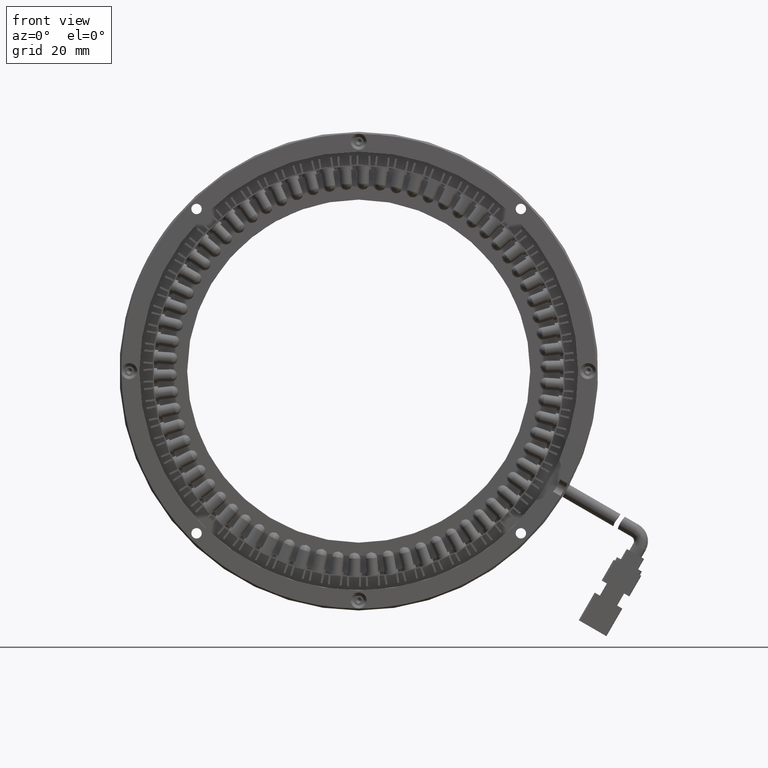
[diagram: clean part render]
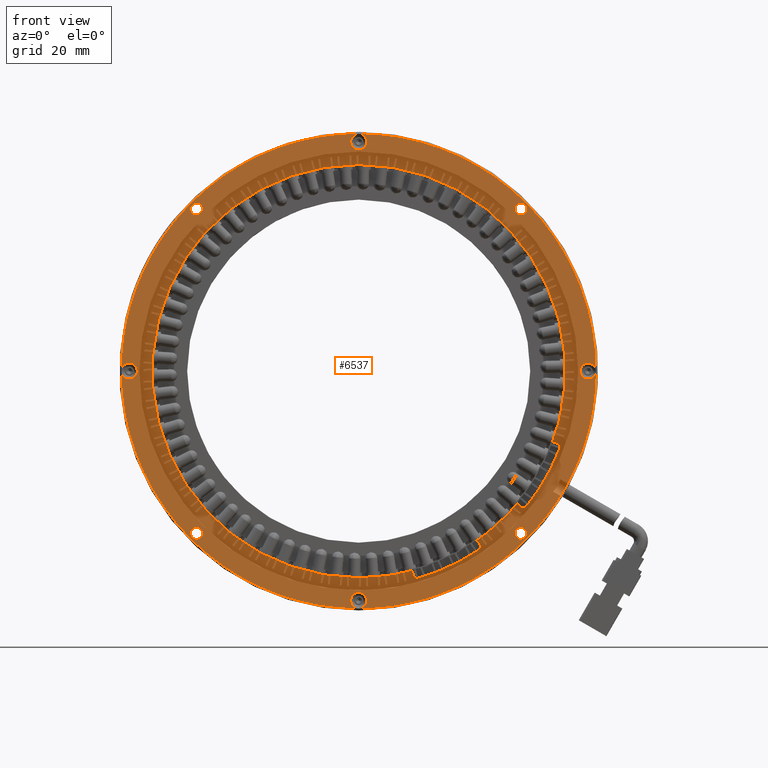
[diagram: same view with one face highlighted and labeled with its STEP entity id]
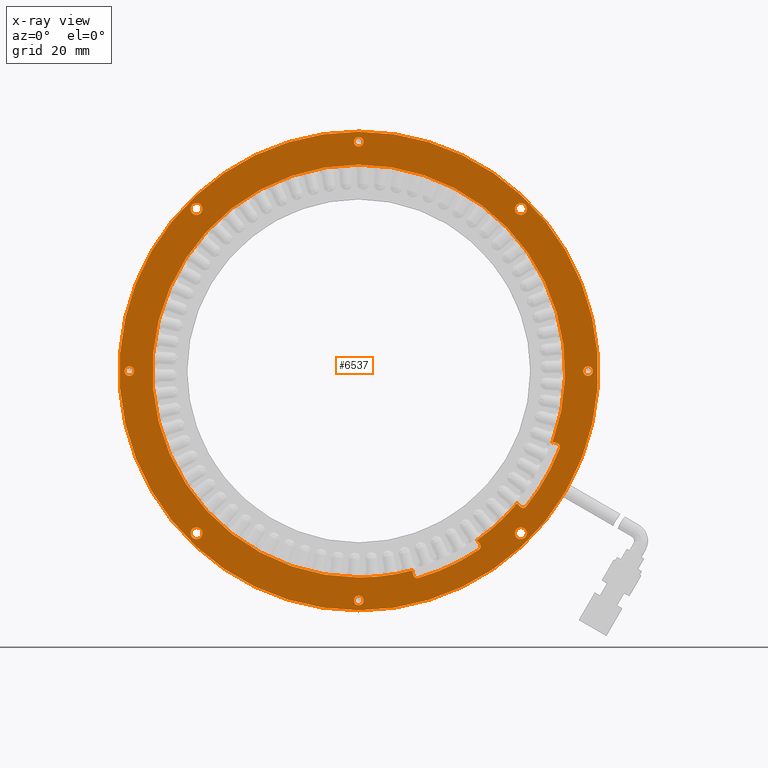
[diagram: x-ray of the same camera — body ghosted, the highlighted face saturated]
A machine part, front view. The second image highlights one B-rep face of the part: STEP entity #6537.
The next image is the same camera in x-ray: the body ghosted, the highlighted face saturated — about 0% of this face is hidden behind the body in this view.
In plain terms, the highlighted planar face has unit normal (0, 1, 0).
Its self-contained STEP definition (entity closure, byte-faithful):
#82 = CIRCLE ( 'NONE', #44407, 1.199999999999598500 ) ;
#341 = DIRECTION ( 'NONE',  ( -0.9396926207839257900, 0.0000000000000000000, 0.3420201433311156900 ) ) ;
#636 = ORIENTED_EDGE ( 'NONE', *, *, #7495, .F. ) ;
#1054 = DIRECTION ( 'NONE',  ( 0.0000000000000000000, 0.0000000000000000000, 1.000000000000000000 ) ) ;
#1114 = AXIS2_PLACEMENT_3D ( 'NONE', #3243, #37939, #8280 ) ;
#1188 = CARTESIAN_POINT ( 'NONE',  ( 70.01589320061864900, 21.01889671362000200, -50.60529560871999200 ) ) ;
#1211 = CIRCLE ( 'NONE', #24453, 1.500000000000001300 ) ;
#1305 = DIRECTION ( 'NONE',  ( 0.0000000000000000000, 0.0000000000000000000, 1.000000000000000000 ) ) ;
#1421 = DIRECTION ( 'NONE',  ( 0.0000000000000000000, 0.0000000000000000000, 1.000000000000000000 ) ) ;
#1616 = DIRECTION ( 'NONE',  ( 0.0000000000000000000, -1.000000000000000000, -0.0000000000000000000 ) ) ;
#1843 = CARTESIAN_POINT ( 'NONE',  ( 56.45624510954999700, 21.01889671361719500, 60.00000000000000000 ) ) ;
#1940 = EDGE_CURVE ( 'NONE', #21557, #63430, #14901, .T. ) ;
#1958 = AXIS2_PLACEMENT_3D ( 'NONE', #17496, #52137, #22484 ) ;
#1964 = VECTOR ( 'NONE', #341, 1000.000000000000100 ) ;
#2201 = DIRECTION ( 'NONE',  ( -8.326672684688724500E-014, 0.0000000000000000000, 1.000000000000000000 ) ) ;
#2352 = DIRECTION ( 'NONE',  ( 0.0000000000000000000, -1.000000000000000000, -0.0000000000000000000 ) ) ;
#2421 = DIRECTION ( 'NONE',  ( 0.0000000000000000000, -1.000000000000000000, 0.0000000000000000000 ) ) ;
#2759 = VECTOR ( 'NONE', #35909, 1000.000000000000200 ) ;
#3002 = VERTEX_POINT ( 'NONE', #17471 ) ;
#3004 = ORIENTED_EDGE ( 'NONE', *, *, #22368, .T. ) ;
#3036 = DIRECTION ( 'NONE',  ( 0.0000000000000000000, -1.000000000000000000, 0.0000000000000000000 ) ) ;
#3073 = CARTESIAN_POINT ( 'NONE',  ( 70.07451705029224300, 21.01889671361679700, -49.92599692893465100 ) ) ;
#3095 = CIRCLE ( 'NONE', #59226, 51.75000000000000700 ) ;
#3243 = CARTESIAN_POINT ( 'NONE',  ( 56.45624510954999000, 21.01889671361647400, 0.0000000000000000000 ) ) ;
#3374 = CIRCLE ( 'NONE', #10572, 1.500000000000015100 ) ;
#3519 = DIRECTION ( 'NONE',  ( -0.0000000000000000000, 1.000000000000000000, -0.0000000000000000000 ) ) ;
#3535 = DIRECTION ( 'NONE',  ( 1.387778780781454000E-014, 0.0000000000000000000, 1.000000000000000000 ) ) ;
#3543 = DIRECTION ( 'NONE',  ( 0.0000000000000000000, 0.0000000000000000000, 1.000000000000000000 ) ) ;
#3587 = PLANE ( 'NONE',  #36748 ) ;
#3991 = ORIENTED_EDGE ( 'NONE', *, *, #46215, .F. ) ;
#4179 = CARTESIAN_POINT ( 'NONE',  ( 56.45624510954999000, 21.01889671361712400, -57.50000000000000000 ) ) ;
#4808 = VERTEX_POINT ( 'NONE', #33383 ) ;
#5374 = CARTESIAN_POINT ( 'NONE',  ( 97.11488502777000100, 21.01889671361723400, -39.15863991822999400 ) ) ;
#5725 = VERTEX_POINT ( 'NONE', #55593 ) ;
#5742 = CIRCLE ( 'NONE', #61881, 1.200000000000000000 ) ;
#5793 = VERTEX_POINT ( 'NONE', #31374 ) ;
#5990 = EDGE_CURVE ( 'NONE', #10380, #26858, #3374, .T. ) ;
#5997 = AXIS2_PLACEMENT_3D ( 'NONE', #14499, #49116, #19501 ) ;
#6029 = ORIENTED_EDGE ( 'NONE', *, *, #8526, .T. ) ;
#6140 = VERTEX_POINT ( 'NONE', #24599 ) ;
#6537 = ADVANCED_FACE ( 'NONE', ( #8700, #49805, #59790, #46670, #33511, #35077, #20380, #7166, #58221, #45129 ), #3587, .T. ) ;
#6619 = CARTESIAN_POINT ( 'NONE',  ( 113.9562451095000000, 21.01889671361712400, 0.0000000000000000000 ) ) ;
#6800 = VERTEX_POINT ( 'NONE', #44310 ) ;
#7131 = EDGE_LOOP ( 'NONE', ( #35744, #40480 ) ) ;
#7135 = EDGE_CURVE ( 'NONE', #61169, #16657, #9940, .T. ) ;
#7166 = FACE_BOUND ( 'NONE', #36577, .T. ) ;
#7495 = EDGE_CURVE ( 'NONE', #21557, #29632, #8254, .T. ) ;
#7617 = DIRECTION ( 'NONE',  ( -0.0000000000000000000, -1.000000000000000000, -0.0000000000000000000 ) ) ;
#8254 = CIRCLE ( 'NONE', #39347, 1.000000000000000900 ) ;
#8280 = DIRECTION ( 'NONE',  ( 0.0000000000000000000, 0.0000000000000000000, 1.000000000000000000 ) ) ;
#8393 = CIRCLE ( 'NONE', #43202, 0.9999999999999940000 ) ;
#8526 = EDGE_CURVE ( 'NONE', #35371, #15156, #32268, .T. ) ;
#8573 = ORIENTED_EDGE ( 'NONE', *, *, #52448, .F. ) ;
#8700 = FACE_BOUND ( 'NONE', #34297, .T. ) ;
#9196 = DIRECTION ( 'NONE',  ( 0.0000000000000000000, 0.0000000000000000000, -1.000000000000000000 ) ) ;
#9940 = CIRCLE ( 'NONE', #36394, 1.500000000000015100 ) ;
#9973 = DIRECTION ( 'NONE',  ( -0.0000000000000000000, 1.000000000000000000, 0.0000000000000000000 ) ) ;
#10152 = DIRECTION ( 'NONE',  ( 0.0000000000000000000, -1.000000000000000000, -0.0000000000000000000 ) ) ;
#10380 = VERTEX_POINT ( 'NONE', #48098 ) ;
#10442 = ORIENTED_EDGE ( 'NONE', *, *, #57289, .F. ) ;
#10572 = AXIS2_PLACEMENT_3D ( 'NONE', #18996, #53580, #23978 ) ;
#10586 = ORIENTED_EDGE ( 'NONE', *, *, #49747, .T. ) ;
#10761 = CARTESIAN_POINT ( 'NONE',  ( 97.69216072687002800, 21.01889671361712400, -33.29563429641999800 ) ) ;
#10939 = ORIENTED_EDGE ( 'NONE', *, *, #43734, .T. ) ;
#11130 = EDGE_CURVE ( 'NONE', #63430, #5725, #26734, .T. ) ;
#11220 = ORIENTED_EDGE ( 'NONE', *, *, #29801, .F. ) ;
#11308 = EDGE_CURVE ( 'NONE', #3002, #54089, #5742, .T. ) ;
#11350 = CIRCLE ( 'NONE', #38288, 1.000000000000000900 ) ;
#11456 = CARTESIAN_POINT ( 'NONE',  ( 70.98181902692999800, 21.01889671361712400, -50.34647656362000100 ) ) ;
#11618 = DIRECTION ( 'NONE',  ( 0.0000000000000000000, 0.0000000000000000000, -1.000000000000000000 ) ) ;
#11765 = VECTOR ( 'NONE', #52936, 1000.000000000000100 ) ;
#12000 = AXIS2_PLACEMENT_3D ( 'NONE', #61537, #31936, #2201 ) ;
#12568 = AXIS2_PLACEMENT_3D ( 'NONE', #20113, #54697, #25096 ) ;
#13107 = EDGE_CURVE ( 'NONE', #6800, #44376, #52950, .T. ) ;
#13172 = CARTESIAN_POINT ( 'NONE',  ( 105.3451509462000100, 21.01889671361712400, -17.85828428287000200 ) ) ;
#14046 = EDGE_CURVE ( 'NONE', #15156, #29632, #3095, .T. ) ;
#14105 = CIRCLE ( 'NONE', #31451, 1.500000000000015100 ) ;
#14291 = DIRECTION ( 'NONE',  ( -0.0000000000000000000, 1.000000000000000000, 0.0000000000000000000 ) ) ;
#14472 = CARTESIAN_POINT ( 'NONE',  ( 86.50617681832380900, 21.01889671361712400, -42.91575007264151500 ) ) ;
#14499 = CARTESIAN_POINT ( 'NONE',  ( 15.79760519132000100, 21.01889671361723400, 40.65863991823000800 ) ) ;
#14707 = ORIENTED_EDGE ( 'NONE', *, *, #1940, .T. ) ;
#14815 = CARTESIAN_POINT ( 'NONE',  ( 56.45624510954999000, 21.01889671361712400, 57.50000000000000000 ) ) ;
#14901 = LINE ( 'NONE', #42472, #28004 ) ;
#14919 = CARTESIAN_POINT ( 'NONE',  ( 56.45624510954999000, 21.01889671361719500, 0.0000000000000000000 ) ) ;
#15156 = VERTEX_POINT ( 'NONE', #62416 ) ;
#15194 = EDGE_CURVE ( 'NONE', #52588, #58176, #43570, .T. ) ;
#15228 = LINE ( 'NONE', #59692, #1964 ) ;
#15233 = EDGE_CURVE ( 'NONE', #18315, #5793, #50570, .T. ) ;
#15350 = ORIENTED_EDGE ( 'NONE', *, *, #63004, .T. ) ;
#15600 = VERTEX_POINT ( 'NONE', #22605 ) ;
#15660 = CARTESIAN_POINT ( 'NONE',  ( 97.11488502777000100, 21.01889671361723400, 42.15863991823000800 ) ) ;
#15795 = DIRECTION ( 'NONE',  ( -1.387778780781444400E-014, 0.0000000000000000000, 1.000000000000000000 ) ) ;
#15894 = VERTEX_POINT ( 'NONE', #25609 ) ;
#16316 = AXIS2_PLACEMENT_3D ( 'NONE', #47558, #17937, #52573 ) ;
#16479 = DIRECTION ( 'NONE',  ( 0.0000000000000000000, 0.0000000000000000000, 1.000000000000000000 ) ) ;
#16535 = ORIENTED_EDGE ( 'NONE', *, *, #62038, .T. ) ;
#16657 = VERTEX_POINT ( 'NONE', #51693 ) ;
#17293 = CIRCLE ( 'NONE', #45440, 60.00000000000000000 ) ;
#17471 = CARTESIAN_POINT ( 'NONE',  ( 113.9562451095000000, 21.01889671361712400, 1.200000000000000000 ) ) ;
#17496 = CARTESIAN_POINT ( 'NONE',  ( 56.45624510954999000, 21.01889671361647400, 0.0000000000000000000 ) ) ;
#17937 = DIRECTION ( 'NONE',  ( 0.0000000000000000000, 1.000000000000000000, 0.0000000000000000000 ) ) ;
#17962 = VERTEX_POINT ( 'NONE', #47146 ) ;
#18058 = CIRCLE ( 'NONE', #48281, 1.200000000000013500 ) ;
#18315 = VERTEX_POINT ( 'NONE', #55749 ) ;
#18340 = CARTESIAN_POINT ( 'NONE',  ( 86.85038465600565900, 21.01889671362000200, -43.40732980994000200 ) ) ;
#18540 = AXIS2_PLACEMENT_3D ( 'NONE', #4179, #38897, #9196 ) ;
#18752 = VERTEX_POINT ( 'NONE', #20436 ) ;
#18996 = CARTESIAN_POINT ( 'NONE',  ( 97.11488502777000100, 21.01889671361723400, -40.65863991823000800 ) ) ;
#19022 = AXIS2_PLACEMENT_3D ( 'NONE', #62847, #33264, #3535 ) ;
#19501 = DIRECTION ( 'NONE',  ( 0.0000000000000000000, 0.0000000000000000000, 1.000000000000000000 ) ) ;
#19571 = CIRCLE ( 'NONE', #23363, 1.200000000000013500 ) ;
#19778 = DIRECTION ( 'NONE',  ( 0.0000000000000000000, 0.0000000000000000000, -1.000000000000000000 ) ) ;
#19895 = DIRECTION ( 'NONE',  ( 0.0000000000000000000, 0.0000000000000000000, -1.000000000000000000 ) ) ;
#20069 = CARTESIAN_POINT ( 'NONE',  ( 15.79760519132000100, 21.01889671361723400, 39.15863991823000800 ) ) ;
#20113 = CARTESIAN_POINT ( 'NONE',  ( 86.03123261172997600, 21.01889671361712400, -43.98090624628999700 ) ) ;
#20380 = FACE_BOUND ( 'NONE', #52091, .T. ) ;
#20436 = CARTESIAN_POINT ( 'NONE',  ( 71.41413640679510900, 21.01889671361712400, -51.88700692793715800 ) ) ;
#21557 = VERTEX_POINT ( 'NONE', #60088 ) ;
#21588 = DIRECTION ( 'NONE',  ( 0.0000000000000000000, -1.000000000000000000, 0.0000000000000000000 ) ) ;
#21635 = EDGE_CURVE ( 'NONE', #4808, #18752, #30322, .T. ) ;
#21975 = ORIENTED_EDGE ( 'NONE', *, *, #21635, .T. ) ;
#22225 = DIRECTION ( 'NONE',  ( -0.0000000000000000000, 1.000000000000000000, -0.0000000000000000000 ) ) ;
#22368 = EDGE_CURVE ( 'NONE', #54089, #3002, #61816, .T. ) ;
#22484 = DIRECTION ( 'NONE',  ( -9.385943444898664700E-016, 0.0000000000000000000, 1.000000000000000000 ) ) ;
#22605 = CARTESIAN_POINT ( 'NONE',  ( 105.6871710895282900, 21.01889671361996300, -17.91859166208542600 ) ) ;
#23363 = AXIS2_PLACEMENT_3D ( 'NONE', #51879, #22225, #56780 ) ;
#23417 = VERTEX_POINT ( 'NONE', #27587 ) ;
#23491 = DIRECTION ( 'NONE',  ( 0.7660444431237696300, 0.0000000000000000000, -0.6427876096808288200 ) ) ;
#23570 = CARTESIAN_POINT ( 'NONE',  ( -5.986352945838000900, 21.01889671362000200, -62.40000000000000600 ) ) ;
#23639 = CIRCLE ( 'NONE', #16316, 1.500000000000015100 ) ;
#23728 = CARTESIAN_POINT ( 'NONE',  ( 56.45624510954999000, 21.01889671361647400, 0.0000000000000000000 ) ) ;
#23763 = AXIS2_PLACEMENT_3D ( 'NONE', #32140, #2421, #37134 ) ;
#23978 = DIRECTION ( 'NONE',  ( 0.0000000000000000000, 0.0000000000000000000, 1.000000000000000000 ) ) ;
#24148 = VERTEX_POINT ( 'NONE', #15660 ) ;
#24453 = AXIS2_PLACEMENT_3D ( 'NONE', #60747, #31140, #1421 ) ;
#24599 = CARTESIAN_POINT ( 'NONE',  ( 15.79760519132000100, 21.01889671361723400, 42.15863991823000800 ) ) ;
#24664 = EDGE_CURVE ( 'NONE', #58176, #52588, #17293, .T. ) ;
#24979 = CARTESIAN_POINT ( 'NONE',  ( -1.043754890453999700, 21.01889671361712400, -4.014800644713822900E-013 ) ) ;
#25061 = EDGE_CURVE ( 'NONE', #16657, #61169, #14105, .T. ) ;
#25096 = DIRECTION ( 'NONE',  ( -1.387778780781463700E-014, 0.0000000000000000000, 1.000000000000000000 ) ) ;
#25134 = CARTESIAN_POINT ( 'NONE',  ( 70.01589320062980400, 21.01889671361712400, -50.60529560872557700 ) ) ;
#25609 = CARTESIAN_POINT ( 'NONE',  ( 105.0053479411685400, 21.01889671361679700, -17.91778764928664500 ) ) ;
#25630 = CARTESIAN_POINT ( 'NONE',  ( 56.45624510954999000, 21.01889671361719500, -60.00000000000000000 ) ) ;
#26169 = ORIENTED_EDGE ( 'NONE', *, *, #41073, .T. ) ;
#26734 = CIRCLE ( 'NONE', #38755, 1.000000000000000900 ) ;
#26858 = VERTEX_POINT ( 'NONE', #5374 ) ;
#26983 = CIRCLE ( 'NONE', #31587, 53.99999999999999300 ) ;
#27056 = CIRCLE ( 'NONE', #49778, 51.75000000000000700 ) ;
#27113 = EDGE_CURVE ( 'NONE', #26858, #10380, #23639, .T. ) ;
#27587 = CARTESIAN_POINT ( 'NONE',  ( 56.45624510954999000, 21.01889671361647400, 51.75000000000000700 ) ) ;
#27597 = DIRECTION ( 'NONE',  ( -0.0000000000000000000, 1.000000000000000000, 0.0000000000000000000 ) ) ;
#27817 = DIRECTION ( 'NONE',  ( -0.0000000000000000000, -1.000000000000000000, -0.0000000000000000000 ) ) ;
#27865 = EDGE_CURVE ( 'NONE', #46682, #40109, #19571, .T. ) ;
#27929 = VERTEX_POINT ( 'NONE', #3073 ) ;
#28004 = VECTOR ( 'NONE', #23491, 1000.000000000000200 ) ;
#28063 = AXIS2_PLACEMENT_3D ( 'NONE', #24979, #59535, #29917 ) ;
#28500 = DIRECTION ( 'NONE',  ( 0.0000000000000000000, 0.0000000000000000000, 1.000000000000000000 ) ) ;
#28671 = DIRECTION ( 'NONE',  ( 0.0000000000000000000, 0.0000000000000000000, 1.000000000000000000 ) ) ;
#28928 = AXIS2_PLACEMENT_3D ( 'NONE', #62858, #33269, #3543 ) ;
#29004 = VERTEX_POINT ( 'NONE', #49708 ) ;
#29456 = VERTEX_POINT ( 'NONE', #42511 ) ;
#29632 = VERTEX_POINT ( 'NONE', #52410 ) ;
#29801 = EDGE_CURVE ( 'NONE', #38768, #6140, #59855, .T. ) ;
#29854 = CARTESIAN_POINT ( 'NONE',  ( 86.58925124384661800, 21.01889671361712400, -44.81073466603146500 ) ) ;
#29917 = DIRECTION ( 'NONE',  ( 0.0000000000000000000, 0.0000000000000000000, -1.000000000000000000 ) ) ;
#30322 = CIRCLE ( 'NONE', #40261, 0.9999999999999940000 ) ;
#30575 = ORIENTED_EDGE ( 'NONE', *, *, #7135, .F. ) ;
#30786 = DIRECTION ( 'NONE',  ( 0.0000000000000000000, -1.000000000000000000, -0.0000000000000000000 ) ) ;
#31039 = DIRECTION ( 'NONE',  ( -0.0000000000000000000, 1.000000000000000000, 0.0000000000000000000 ) ) ;
#31140 = DIRECTION ( 'NONE',  ( 0.0000000000000000000, 1.000000000000000000, 0.0000000000000000000 ) ) ;
#31356 = CARTESIAN_POINT ( 'NONE',  ( 71.13713841981999100, 21.01889671361712400, -50.92613642926999500 ) ) ;
#31374 = CARTESIAN_POINT ( 'NONE',  ( 56.45624510954999000, 21.01889671361712400, -58.70000000000000300 ) ) ;
#31451 = AXIS2_PLACEMENT_3D ( 'NONE', #43940, #14291, #48914 ) ;
#31587 = AXIS2_PLACEMENT_3D ( 'NONE', #37292, #7617, #42266 ) ;
#31887 = CARTESIAN_POINT ( 'NONE',  ( 86.85038465601374500, 21.01889671361712400, -43.40732980994152300 ) ) ;
#31936 = DIRECTION ( 'NONE',  ( 0.0000000000000000000, -1.000000000000000000, -0.0000000000000000000 ) ) ;
#32000 = EDGE_CURVE ( 'NONE', #15894, #23417, #54564, .T. ) ;
#32032 = CIRCLE ( 'NONE', #28928, 1.500000000000001300 ) ;
#32073 = CARTESIAN_POINT ( 'NONE',  ( 105.3451509462000100, 21.01889671361712400, -18.85828428286999900 ) ) ;
#32140 = CARTESIAN_POINT ( 'NONE',  ( 56.45624510954999000, 21.01889671361712400, -57.50000000000000000 ) ) ;
#32268 = CIRCLE ( 'NONE', #19022, 0.9999999999999940000 ) ;
#32581 = ORIENTED_EDGE ( 'NONE', *, *, #49237, .T. ) ;
#32613 = EDGE_CURVE ( 'NONE', #44376, #6800, #82, .T. ) ;
#32746 = CARTESIAN_POINT ( 'NONE',  ( 113.9562451095000000, 21.01889671361712400, 0.0000000000000000000 ) ) ;
#33169 = AXIS2_PLACEMENT_3D ( 'NONE', #57394, #27817, #62407 ) ;
#33244 = CARTESIAN_POINT ( 'NONE',  ( 56.45624510954999000, 21.01889671361719500, 0.0000000000000000000 ) ) ;
#33264 = DIRECTION ( 'NONE',  ( 0.0000000000000000000, -1.000000000000000000, -0.0000000000000000000 ) ) ;
#33269 = DIRECTION ( 'NONE',  ( 0.0000000000000000000, 1.000000000000000000, 0.0000000000000000000 ) ) ;
#33383 = CARTESIAN_POINT ( 'NONE',  ( 70.17121259352165900, 21.01889671361712400, -51.18495547437836300 ) ) ;
#33511 = FACE_BOUND ( 'NONE', #55278, .T. ) ;
#34297 = EDGE_LOOP ( 'NONE', ( #3004, #58011 ) ) ;
#34357 = ORIENTED_EDGE ( 'NONE', *, *, #27113, .F. ) ;
#34934 = ORIENTED_EDGE ( 'NONE', *, *, #62749, .T. ) ;
#35077 = FACE_BOUND ( 'NONE', #61714, .T. ) ;
#35371 = VERTEX_POINT ( 'NONE', #14472 ) ;
#35744 = ORIENTED_EDGE ( 'NONE', *, *, #32613, .T. ) ;
#35771 = EDGE_LOOP ( 'NONE', ( #37462, #39845 ) ) ;
#35909 = DIRECTION ( 'NONE',  ( 0.2588190451092419200, 0.0000000000000000000, -0.9659258262872673100 ) ) ;
#36195 = EDGE_CURVE ( 'NONE', #29456, #27929, #44829, .T. ) ;
#36299 = AXIS2_PLACEMENT_3D ( 'NONE', #39838, #10152, #44785 ) ;
#36337 = DIRECTION ( 'NONE',  ( 1.387778780781454000E-014, 0.0000000000000000000, 1.000000000000000000 ) ) ;
#36394 = AXIS2_PLACEMENT_3D ( 'NONE', #57207, #27597, #62182 ) ;
#36577 = EDGE_LOOP ( 'NONE', ( #54594, #56926 ) ) ;
#36748 = AXIS2_PLACEMENT_3D ( 'NONE', #23570, #58114, #28500 ) ;
#37062 = DIRECTION ( 'NONE',  ( 0.0000000000000000000, 0.0000000000000000000, 1.000000000000000000 ) ) ;
#37134 = DIRECTION ( 'NONE',  ( 0.0000000000000000000, 0.0000000000000000000, -1.000000000000000000 ) ) ;
#37292 = CARTESIAN_POINT ( 'NONE',  ( 56.45624510954999000, 21.01889671361712400, 0.0000000000000000000 ) ) ;
#37462 = ORIENTED_EDGE ( 'NONE', *, *, #15194, .T. ) ;
#37723 = DIRECTION ( 'NONE',  ( 0.0000000000000000000, 0.0000000000000000000, -1.000000000000000000 ) ) ;
#37939 = DIRECTION ( 'NONE',  ( 0.0000000000000000000, -1.000000000000000000, -0.0000000000000000000 ) ) ;
#37956 = ORIENTED_EDGE ( 'NONE', *, *, #60349, .T. ) ;
#38238 = DIRECTION ( 'NONE',  ( 0.0000000000000000000, 0.0000000000000000000, -1.000000000000000000 ) ) ;
#38288 = AXIS2_PLACEMENT_3D ( 'NONE', #11456, #46101, #16479 ) ;
#38755 = AXIS2_PLACEMENT_3D ( 'NONE', #10761, #45395, #15795 ) ;
#38768 = VERTEX_POINT ( 'NONE', #20069 ) ;
#38897 = DIRECTION ( 'NONE',  ( 0.0000000000000000000, -1.000000000000000000, 0.0000000000000000000 ) ) ;
#39347 = AXIS2_PLACEMENT_3D ( 'NONE', #60642, #31039, #1305 ) ;
#39665 = CARTESIAN_POINT ( 'NONE',  ( 15.79760519132000100, 21.01889671361723400, 40.65863991823000800 ) ) ;
#39678 = ORIENTED_EDGE ( 'NONE', *, *, #36195, .T. ) ;
#39838 = CARTESIAN_POINT ( 'NONE',  ( 105.9090680539999700, 21.01889671361712400, -19.06353332470000000 ) ) ;
#39845 = ORIENTED_EDGE ( 'NONE', *, *, #24664, .T. ) ;
#40109 = VERTEX_POINT ( 'NONE', #51852 ) ;
#40261 = AXIS2_PLACEMENT_3D ( 'NONE', #31356, #1616, #36337 ) ;
#40480 = ORIENTED_EDGE ( 'NONE', *, *, #13107, .T. ) ;
#40829 = LINE ( 'NONE', #1188, #2759 ) ;
#41073 = EDGE_CURVE ( 'NONE', #59541, #49735, #51204, .T. ) ;
#41302 = DIRECTION ( 'NONE',  ( 0.0000000000000000000, -1.000000000000000000, 0.0000000000000000000 ) ) ;
#41623 = CIRCLE ( 'NONE', #12000, 0.9999999999999940000 ) ;
#42266 = DIRECTION ( 'NONE',  ( 0.0000000000000000000, 0.0000000000000000000, 1.000000000000000000 ) ) ;
#42472 = CARTESIAN_POINT ( 'NONE',  ( 96.58966367892394100, 21.01889671362000200, -33.67593671947000200 ) ) ;
#42511 = CARTESIAN_POINT ( 'NONE',  ( 56.45624510954999700, 21.01889671361647400, -51.75000000000000700 ) ) ;
#42840 = EDGE_LOOP ( 'NONE', ( #47279, #8573 ) ) ;
#43202 = AXIS2_PLACEMENT_3D ( 'NONE', #32073, #2352, #37062 ) ;
#43372 = ORIENTED_EDGE ( 'NONE', *, *, #11130, .T. ) ;
#43570 = CIRCLE ( 'NONE', #62817, 60.00000000000000000 ) ;
#43734 = EDGE_CURVE ( 'NONE', #23417, #29456, #27056, .T. ) ;
#43940 = CARTESIAN_POINT ( 'NONE',  ( 15.79760519132000100, 21.01889671361723400, -40.65863991823000800 ) ) ;
#44310 = CARTESIAN_POINT ( 'NONE',  ( -1.043754890453999500, 21.01889671361712400, 1.199999999999197000 ) ) ;
#44376 = VERTEX_POINT ( 'NONE', #50439 ) ;
#44396 = EDGE_CURVE ( 'NONE', #51401, #4808, #40829, .T. ) ;
#44407 = AXIS2_PLACEMENT_3D ( 'NONE', #51221, #21588, #56144 ) ;
#44449 = EDGE_CURVE ( 'NONE', #24148, #29004, #1211, .T. ) ;
#44583 = DIRECTION ( 'NONE',  ( 0.0000000000000000000, 0.0000000000000000000, 1.000000000000000000 ) ) ;
#44785 = DIRECTION ( 'NONE',  ( 0.0000000000000000000, 0.0000000000000000000, 1.000000000000000000 ) ) ;
#44829 = CIRCLE ( 'NONE', #1114, 51.75000000000000700 ) ;
#45129 = FACE_OUTER_BOUND ( 'NONE', #35771, .T. ) ;
#45395 = DIRECTION ( 'NONE',  ( 0.0000000000000000000, -1.000000000000000000, -0.0000000000000000000 ) ) ;
#45440 = AXIS2_PLACEMENT_3D ( 'NONE', #14919, #49530, #19895 ) ;
#45762 = EDGE_CURVE ( 'NONE', #59419, #15894, #8393, .T. ) ;
#45931 = ORIENTED_EDGE ( 'NONE', *, *, #44396, .T. ) ;
#46101 = DIRECTION ( 'NONE',  ( -0.0000000000000000000, 1.000000000000000000, 0.0000000000000000000 ) ) ;
#46196 = EDGE_LOOP ( 'NONE', ( #10586, #26169, #15350, #6029, #47897, #636, #14707, #43372, #32581, #34934, #52756, #37956, #55776, #59648, #10939, #39678, #3991, #45931, #21975 ) ) ;
#46215 = EDGE_CURVE ( 'NONE', #51401, #27929, #11350, .T. ) ;
#46373 = VERTEX_POINT ( 'NONE', #56450 ) ;
#46670 = FACE_BOUND ( 'NONE', #51615, .T. ) ;
#46682 = VERTEX_POINT ( 'NONE', #49281 ) ;
#47146 = CARTESIAN_POINT ( 'NONE',  ( 106.2510881973325600, 21.01889671361712400, -18.12384070392067100 ) ) ;
#47279 = ORIENTED_EDGE ( 'NONE', *, *, #27865, .F. ) ;
#47558 = CARTESIAN_POINT ( 'NONE',  ( 97.11488502777000100, 21.01889671361723400, -40.65863991823000800 ) ) ;
#47897 = ORIENTED_EDGE ( 'NONE', *, *, #14046, .T. ) ;
#48098 = CARTESIAN_POINT ( 'NONE',  ( 97.11488502777000100, 21.01889671361723400, -42.15863991823002300 ) ) ;
#48281 = AXIS2_PLACEMENT_3D ( 'NONE', #14815, #49417, #19778 ) ;
#48914 = DIRECTION ( 'NONE',  ( 0.0000000000000000000, 0.0000000000000000000, 1.000000000000000000 ) ) ;
#49116 = DIRECTION ( 'NONE',  ( -0.0000000000000000000, 1.000000000000000000, 0.0000000000000000000 ) ) ;
#49237 = EDGE_CURVE ( 'NONE', #5725, #46373, #60411, .T. ) ;
#49281 = CARTESIAN_POINT ( 'NONE',  ( 56.45624510954999000, 21.01889671361712400, 56.29999999999999000 ) ) ;
#49417 = DIRECTION ( 'NONE',  ( -0.0000000000000000000, 1.000000000000000000, -0.0000000000000000000 ) ) ;
#49530 = DIRECTION ( 'NONE',  ( -0.0000000000000000000, 1.000000000000000000, -0.0000000000000000000 ) ) ;
#49708 = CARTESIAN_POINT ( 'NONE',  ( 97.11488502777000100, 21.01889671361723400, 39.15863991823000800 ) ) ;
#49735 = VERTEX_POINT ( 'NONE', #31887 ) ;
#49747 = EDGE_CURVE ( 'NONE', #18752, #59541, #26983, .T. ) ;
#49778 = AXIS2_PLACEMENT_3D ( 'NONE', #60381, #30786, #1054 ) ;
#49805 = FACE_BOUND ( 'NONE', #42840, .T. ) ;
#50439 = CARTESIAN_POINT ( 'NONE',  ( -1.043754890453999700, 21.01889671361712400, -1.200000000000000200 ) ) ;
#50570 = CIRCLE ( 'NONE', #18540, 1.199999999999999700 ) ;
#51204 = CIRCLE ( 'NONE', #12568, 0.9999999999999870100 ) ;
#51221 = CARTESIAN_POINT ( 'NONE',  ( -1.043754890453999700, 21.01889671361712400, -4.014800644713822900E-013 ) ) ;
#51401 = VERTEX_POINT ( 'NONE', #25134 ) ;
#51615 = EDGE_LOOP ( 'NONE', ( #16535, #56748 ) ) ;
#51620 = CARTESIAN_POINT ( 'NONE',  ( 97.04937311718184400, 21.01889671361712400, -34.06167873954634500 ) ) ;
#51693 = CARTESIAN_POINT ( 'NONE',  ( 15.79760519132000100, 21.01889671361723400, -39.15863991822999400 ) ) ;
#51852 = CARTESIAN_POINT ( 'NONE',  ( 56.45624510954999000, 21.01889671361712400, 58.70000000000001700 ) ) ;
#51879 = CARTESIAN_POINT ( 'NONE',  ( 56.45624510954999000, 21.01889671361712400, 57.50000000000000000 ) ) ;
#52091 = EDGE_LOOP ( 'NONE', ( #10442, #11220 ) ) ;
#52137 = DIRECTION ( 'NONE',  ( 0.0000000000000000000, -1.000000000000000000, -0.0000000000000000000 ) ) ;
#52410 = CARTESIAN_POINT ( 'NONE',  ( 96.24805580926177100, 21.01889671361679700, -33.08586255847507800 ) ) ;
#52448 = EDGE_CURVE ( 'NONE', #40109, #46682, #18058, .T. ) ;
#52573 = DIRECTION ( 'NONE',  ( 0.0000000000000000000, 0.0000000000000000000, 1.000000000000000000 ) ) ;
#52588 = VERTEX_POINT ( 'NONE', #25630 ) ;
#52756 = ORIENTED_EDGE ( 'NONE', *, *, #55312, .T. ) ;
#52936 = DIRECTION ( 'NONE',  ( -0.5735764363525099900, 0.0000000000000000000, 0.8191520442879666200 ) ) ;
#52950 = CIRCLE ( 'NONE', #28063, 1.199999999999598500 ) ;
#53580 = DIRECTION ( 'NONE',  ( 0.0000000000000000000, 1.000000000000000000, 0.0000000000000000000 ) ) ;
#54089 = VERTEX_POINT ( 'NONE', #56835 ) ;
#54122 = EDGE_CURVE ( 'NONE', #29004, #24148, #32032, .T. ) ;
#54564 = CIRCLE ( 'NONE', #1958, 51.75000000000000700 ) ;
#54594 = ORIENTED_EDGE ( 'NONE', *, *, #44449, .F. ) ;
#54644 = CIRCLE ( 'NONE', #23763, 1.199999999999999700 ) ;
#54697 = DIRECTION ( 'NONE',  ( 0.0000000000000000000, -1.000000000000000000, -0.0000000000000000000 ) ) ;
#55017 = CIRCLE ( 'NONE', #5997, 1.500000000000001300 ) ;
#55278 = EDGE_LOOP ( 'NONE', ( #34357, #62987 ) ) ;
#55312 = EDGE_CURVE ( 'NONE', #17962, #15600, #15228, .T. ) ;
#55593 = CARTESIAN_POINT ( 'NONE',  ( 98.47019687058852400, 21.01889671361712400, -33.92385381145729200 ) ) ;
#55749 = CARTESIAN_POINT ( 'NONE',  ( 56.45624510954999000, 21.01889671361712400, -56.30000000000000400 ) ) ;
#55776 = ORIENTED_EDGE ( 'NONE', *, *, #45762, .T. ) ;
#56093 = ORIENTED_EDGE ( 'NONE', *, *, #25061, .F. ) ;
#56144 = DIRECTION ( 'NONE',  ( 0.0000000000000000000, 0.0000000000000000000, -1.000000000000000000 ) ) ;
#56450 = CARTESIAN_POINT ( 'NONE',  ( 106.8421401850278200, 21.01889671361712400, -19.42322263271341500 ) ) ;
#56748 = ORIENTED_EDGE ( 'NONE', *, *, #15233, .T. ) ;
#56780 = DIRECTION ( 'NONE',  ( 0.0000000000000000000, 0.0000000000000000000, -1.000000000000000000 ) ) ;
#56835 = CARTESIAN_POINT ( 'NONE',  ( 113.9562451095000000, 21.01889671361712400, -1.200000000000000000 ) ) ;
#56926 = ORIENTED_EDGE ( 'NONE', *, *, #54122, .F. ) ;
#57207 = CARTESIAN_POINT ( 'NONE',  ( 15.79760519132000100, 21.01889671361723400, -40.65863991823000800 ) ) ;
#57289 = EDGE_CURVE ( 'NONE', #6140, #38768, #55017, .T. ) ;
#57394 = CARTESIAN_POINT ( 'NONE',  ( 56.45624510954999000, 21.01889671361712400, 0.0000000000000000000 ) ) ;
#58011 = ORIENTED_EDGE ( 'NONE', *, *, #11308, .T. ) ;
#58114 = DIRECTION ( 'NONE',  ( 0.0000000000000000000, 1.000000000000000000, 0.0000000000000000000 ) ) ;
#58130 = LINE ( 'NONE', #18340, #11765 ) ;
#58176 = VERTEX_POINT ( 'NONE', #1843 ) ;
#58221 = FACE_BOUND ( 'NONE', #46196, .T. ) ;
#58286 = DIRECTION ( 'NONE',  ( 0.0000000000000000000, -1.000000000000000000, -0.0000000000000000000 ) ) ;
#58451 = AXIS2_PLACEMENT_3D ( 'NONE', #32746, #3036, #37723 ) ;
#59226 = AXIS2_PLACEMENT_3D ( 'NONE', #23728, #58286, #28671 ) ;
#59419 = VERTEX_POINT ( 'NONE', #13172 ) ;
#59535 = DIRECTION ( 'NONE',  ( 0.0000000000000000000, -1.000000000000000000, 0.0000000000000000000 ) ) ;
#59541 = VERTEX_POINT ( 'NONE', #29854 ) ;
#59648 = ORIENTED_EDGE ( 'NONE', *, *, #32000, .T. ) ;
#59692 = CARTESIAN_POINT ( 'NONE',  ( 106.2510881973222600, 21.01889671362000200, -18.12384070391999900 ) ) ;
#59790 = FACE_BOUND ( 'NONE', #7131, .T. ) ;
#59855 = CIRCLE ( 'NONE', #61526, 1.500000000000001300 ) ;
#60088 = CARTESIAN_POINT ( 'NONE',  ( 96.58966367894359500, 21.01889671361712400, -33.67593671947526000 ) ) ;
#60349 = EDGE_CURVE ( 'NONE', #15600, #59419, #41623, .T. ) ;
#60381 = CARTESIAN_POINT ( 'NONE',  ( 56.45624510954999000, 21.01889671361647400, 0.0000000000000000000 ) ) ;
#60411 = CIRCLE ( 'NONE', #33169, 53.99999999999999300 ) ;
#60642 = CARTESIAN_POINT ( 'NONE',  ( 97.23245128862998900, 21.01889671361712400, -32.90989227635000700 ) ) ;
#60747 = CARTESIAN_POINT ( 'NONE',  ( 97.11488502777000100, 21.01889671361723400, 40.65863991823000800 ) ) ;
#61169 = VERTEX_POINT ( 'NONE', #63587 ) ;
#61526 = AXIS2_PLACEMENT_3D ( 'NONE', #39665, #9973, #44583 ) ;
#61537 = CARTESIAN_POINT ( 'NONE',  ( 105.3451509462000100, 21.01889671361712400, -18.85828428286999900 ) ) ;
#61714 = EDGE_LOOP ( 'NONE', ( #56093, #30575 ) ) ;
#61816 = CIRCLE ( 'NONE', #58451, 1.200000000000000000 ) ;
#61881 = AXIS2_PLACEMENT_3D ( 'NONE', #6619, #41302, #11618 ) ;
#62038 = EDGE_CURVE ( 'NONE', #5793, #18315, #54644, .T. ) ;
#62182 = DIRECTION ( 'NONE',  ( 0.0000000000000000000, 0.0000000000000000000, 1.000000000000000000 ) ) ;
#62407 = DIRECTION ( 'NONE',  ( 2.698458740408366800E-015, 0.0000000000000000000, 1.000000000000000000 ) ) ;
#62416 = CARTESIAN_POINT ( 'NONE',  ( 85.94812115529238400, 21.01889671361679700, -42.52401377225068300 ) ) ;
#62749 = EDGE_CURVE ( 'NONE', #46373, #17962, #62861, .T. ) ;
#62817 = AXIS2_PLACEMENT_3D ( 'NONE', #33244, #3519, #38238 ) ;
#62847 = CARTESIAN_POINT ( 'NONE',  ( 85.68702477404001200, 21.01889671361712400, -43.48932650898999000 ) ) ;
#62858 = CARTESIAN_POINT ( 'NONE',  ( 97.11488502777000100, 21.01889671361723400, 40.65863991823000800 ) ) ;
#62861 = CIRCLE ( 'NONE', #36299, 1.000000000000000900 ) ;
#62987 = ORIENTED_EDGE ( 'NONE', *, *, #5990, .F. ) ;
#63004 = EDGE_CURVE ( 'NONE', #49735, #35371, #58130, .T. ) ;
#63430 = VERTEX_POINT ( 'NONE', #51620 ) ;
#63587 = CARTESIAN_POINT ( 'NONE',  ( 15.79760519132000100, 21.01889671361723400, -42.15863991823002300 ) ) ;